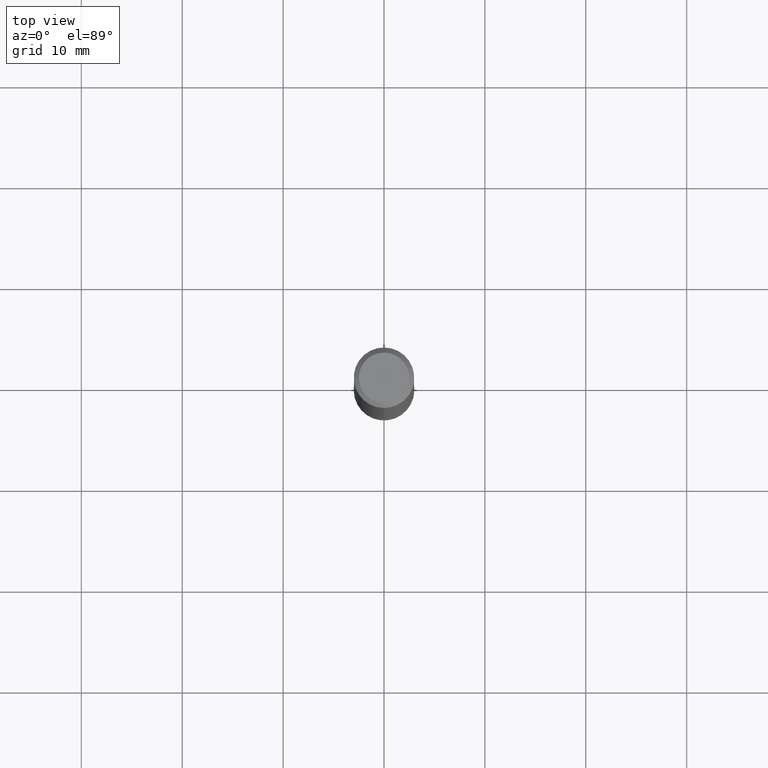
[diagram: clean part render]
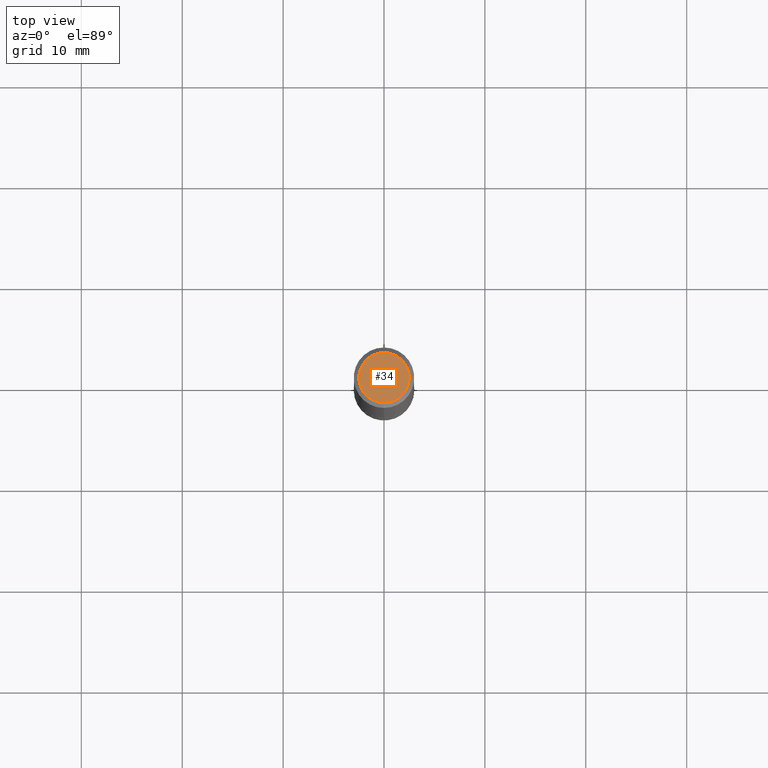
[diagram: same view with one face highlighted and labeled with its STEP entity id]
A machine part, top view. The second image highlights one B-rep face of the part: STEP entity #34.
In plain terms, the highlighted planar face has unit normal (0, -0, -1).
Its self-contained STEP definition (entity closure, byte-faithful):
#12 = VERTEX_POINT ( 'NONE', #141 ) ;
#32 = DIRECTION ( 'NONE',  ( -2.450263031530966947E-29, 3.484615735277555768E-15, 1.000000000000000000 ) ) ;
#34 = ADVANCED_FACE ( 'NONE', ( #363 ), #231, .F. ) ;
#36 = AXIS2_PLACEMENT_3D ( 'NONE', #76, #200, #167 ) ;
#61 = ORIENTED_EDGE ( 'NONE', *, *, #260, .T. ) ;
#76 = CARTESIAN_POINT ( 'NONE',  ( 6.850286386810240328E-16, 0.09810000000000017317, -3.933997113668260062E-16 ) ) ;
#81 = AXIS2_PLACEMENT_3D ( 'NONE', #90, #250, #124 ) ;
#90 = CARTESIAN_POINT ( 'NONE',  ( 2.526657711437494738E-45, -3.593259623818554221E-31, -1.031178154721942270E-16 ) ) ;
#96 = DIRECTION ( 'NONE',  ( -6.982962677686267499E-15, -1.000000000000000000, 3.484615735277555768E-15 ) ) ;
#98 = EDGE_LOOP ( 'NONE', ( #61, #272 ) ) ;
#124 = DIRECTION ( 'NONE',  ( -6.982962677686267499E-15, -1.000000000000000000, 3.484615735277555768E-15 ) ) ;
#141 = CARTESIAN_POINT ( 'NONE',  ( 7.548582654578863449E-16, 0.09810000000000017317, -4.449586191029230457E-16 ) ) ;
#167 = DIRECTION ( 'NONE',  ( 6.982962677686265922E-15, 1.000000000000000000, -3.484615735277555768E-15 ) ) ;
#175 = AXIS2_PLACEMENT_3D ( 'NONE', #254, #32, #96 ) ;
#200 = DIRECTION ( 'NONE',  ( 2.450263031530966667E-29, -3.484615735277555768E-15, -1.000000000000000000 ) ) ;
#231 = PLANE ( 'NONE',  #36 ) ;
#250 = DIRECTION ( 'NONE',  ( -2.450263031530966947E-29, 3.484615735277555768E-15, 1.000000000000000000 ) ) ;
#253 = CIRCLE ( 'NONE', #175, 0.09810000000000017317 ) ;
#254 = CARTESIAN_POINT ( 'NONE',  ( 2.526657711437494738E-45, -3.593259623818554221E-31, -1.031178154721942270E-16 ) ) ;
#260 = EDGE_CURVE ( 'NONE', #12, #380, #322, .T. ) ;
#272 = ORIENTED_EDGE ( 'NONE', *, *, #276, .T. ) ;
#276 = EDGE_CURVE ( 'NONE', #380, #12, #253, .T. ) ;
#322 = CIRCLE ( 'NONE', #81, 0.09810000000000017317 ) ;
#353 = CARTESIAN_POINT ( 'NONE',  ( -7.416198335591028981E-16, -0.09810000000000017317, 2.387229881585345917E-16 ) ) ;
#363 = FACE_OUTER_BOUND ( 'NONE', #98, .T. ) ;
#380 = VERTEX_POINT ( 'NONE', #353 ) ;